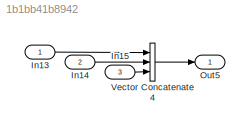
MODEL slx_1b1bb41b8942
KIND model
CONFIG AbsTol = auto
CONFIG EnableMultiTasking = on
CONFIG FixedStep = 0.1
CONFIG MaxStep = 1
CONFIG MinStep = auto
CONFIG RelTol = 1e-3
CONFIG SampleTimeConstraint = Unconstrained
CONFIG Solver = FixedStepAuto
CONFIG SolverName = FixedStepAuto
CONFIG StartTime = 0.0
CONFIG StopTime = 0
BLOCK [Inport] In13
  IconDisplay = Port number
  OutDataTypeStr = double
  PortDimensions = [5 2]
BLOCK [Inport] In14
  IconDisplay = Port number
  OutDataTypeStr = double
  Port = 2
  PortDimensions = 5
BLOCK [Inport] In15
  IconDisplay = Port number
  OutDataTypeStr = double
  Port = 3
  PortDimensions = 5
BLOCK [Outport] Out5
  IconDisplay = Port number
BLOCK [Concatenate] Vector Concatenate4
  ConcatenateDimension = 2
  Mode = Multidimensional array
  NumInputs = 3
  Ports = [3, 1]
LINE In13:1 -> Vector Concatenate4:1
LINE In14:1 -> Vector Concatenate4:2
LINE In15:1 -> Vector Concatenate4:3
LINE Vector Concatenate4:1 -> Out5:1
